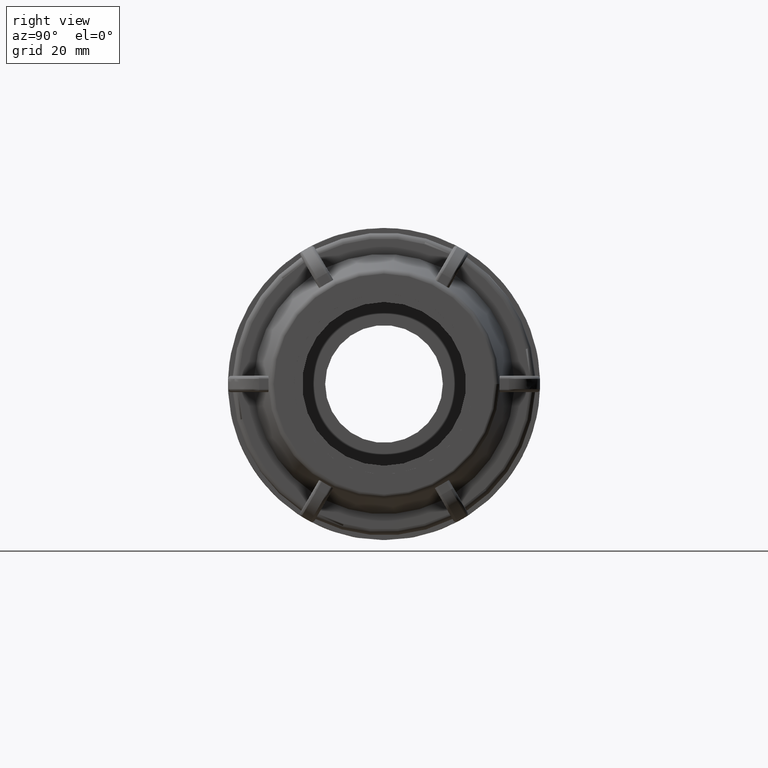
[diagram: clean part render]
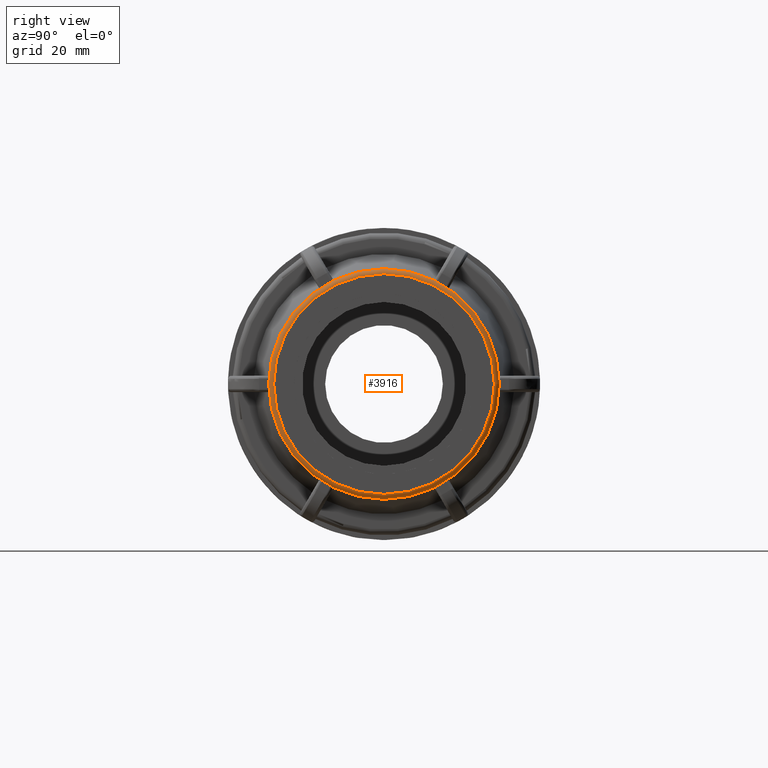
[diagram: same view with one face highlighted and labeled with its STEP entity id]
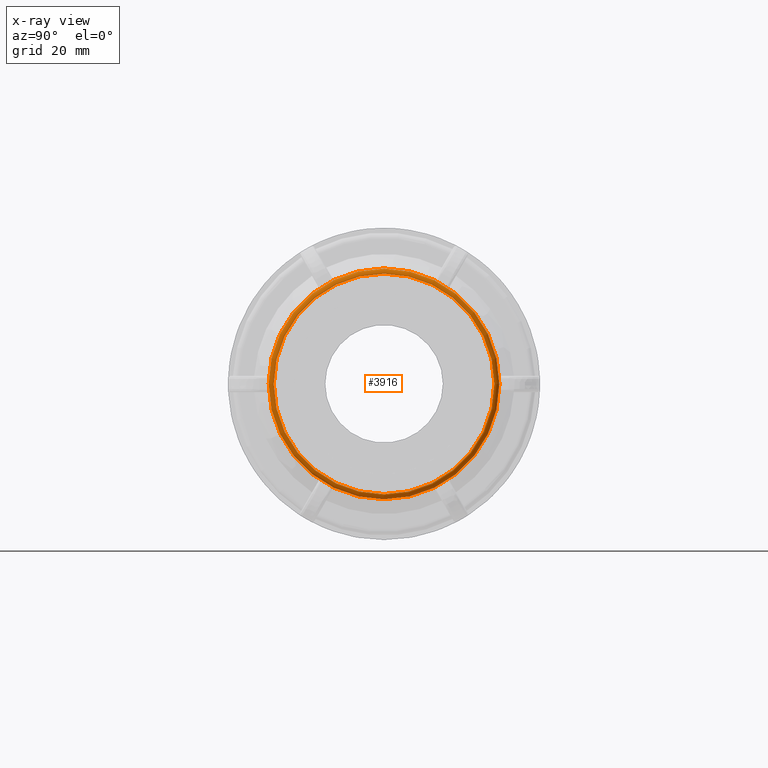
[diagram: x-ray of the same camera — body ghosted, the highlighted face saturated]
A machine part, right view. The second image highlights one B-rep face of the part: STEP entity #3916.
The next image is the same camera in x-ray: the body ghosted, the highlighted face saturated — about 0% of this face is hidden behind the body in this view.
In plain terms, the highlighted toroidal blend (fillet) surface has major radius 21.5609 mm and minor (blend) radius 1 mm.
Its self-contained STEP definition (entity closure, byte-faithful):
#42=TOROIDAL_SURFACE('',#4356,21.5609003688227,1.);
#210=FACE_BOUND('',#784,.T.);
#530=FACE_OUTER_BOUND('',#783,.T.);
#783=EDGE_LOOP('',(#3589));
#784=EDGE_LOOP('',(#3590));
#1473=CIRCLE('',#4336,22.5457081218349);
#1479=CIRCLE('',#4357,21.5609003688227);
#1850=VERTEX_POINT('',#8012);
#1857=VERTEX_POINT('',#8132);
#2421=EDGE_CURVE('',#1850,#1850,#1473,.T.);
#2439=EDGE_CURVE('',#1857,#1857,#1479,.T.);
#3589=ORIENTED_EDGE('',*,*,#2421,.T.);
#3590=ORIENTED_EDGE('',*,*,#2439,.T.);
#3916=ADVANCED_FACE('',(#530,#210),#42,.T.);
#4336=AXIS2_PLACEMENT_3D('',#8013,#5411,#5412);
#4356=AXIS2_PLACEMENT_3D('',#8131,#5459,#5460);
#4357=AXIS2_PLACEMENT_3D('',#8133,#5461,#5462);
#5411=DIRECTION('center_axis',(1.,3.93945674671423E-16,-3.44314501433615E-32));
#5412=DIRECTION('ref_axis',(3.93945674671423E-16,-1.,3.06161699786838E-17));
#5459=DIRECTION('center_axis',(1.,3.06161699786838E-16,0.));
#5460=DIRECTION('ref_axis',(0.,0.,-1.));
#5461=DIRECTION('center_axis',(-1.,-3.06161699786838E-16,0.));
#5462=DIRECTION('ref_axis',(3.06161699786838E-16,-1.,1.83697019872103E-16));
#8012=CARTESIAN_POINT('',(56.1736481776669,22.5457081218349,-1.38052646429578E-15));
#8013=CARTESIAN_POINT('Origin',(56.1736481776669,1.55431223447522E-14,-3.45131616073945E-15));
#8131=CARTESIAN_POINT('Origin',(56.,1.71450551880629E-14,0.));
#8132=CARTESIAN_POINT('',(57.,21.5609003688227,-6.60112190585343E-15));
#8133=CARTESIAN_POINT('Origin',(57.,1.74512168878498E-14,0.));